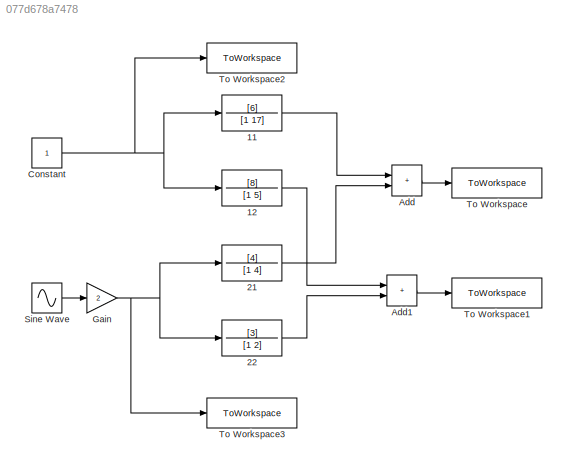
MODEL slx_077d678a7478
KIND model
CONFIG AbsTol = auto
CONFIG EnableMultiTasking = off
CONFIG FixedStep = auto
CONFIG MaxStep = auto
CONFIG MinStep = auto
CONFIG RelTol = 1e-3
CONFIG SampleTimeConstraint = Unconstrained
CONFIG SolverName = VariableStepAuto
CONFIG StartTime = 0.0
CONFIG StopTime = 20
BLOCK [TransferFcn] 11
  Denominator = [1 17]
  Numerator = [6]
BLOCK [TransferFcn] 12
  Denominator = [1 5]
  Numerator = [8]
BLOCK [TransferFcn] 21
  Denominator = [1 4]
  Numerator = [4]
BLOCK [TransferFcn] 22
  Denominator = [1 2]
  Numerator = [3]
BLOCK [Sum] Add
  IconShape = rectangular
  Ports = [2, 1]
BLOCK [Sum] Add1
  IconShape = rectangular
  Ports = [2, 1]
BLOCK [Constant] Constant
  SampleTime = -1
BLOCK [Gain] Gain
  Gain = 2
BLOCK [Sin] Sine Wave
  Ports = [0, 1]
  SampleTime = 0
BLOCK [ToWorkspace] To Workspace
  FixptAsFi = on
  MaxDataPoints = inf
  Ports = [1]
  SampleTime = -1
  SaveFormat = Timeseries
  VariableName = y1
BLOCK [ToWorkspace] To Workspace1
  FixptAsFi = on
  MaxDataPoints = inf
  Ports = [1]
  SampleTime = -1
  SaveFormat = Timeseries
  VariableName = y2
BLOCK [ToWorkspace] To Workspace2
  FixptAsFi = on
  MaxDataPoints = inf
  Ports = [1]
  SampleTime = -1
  SaveFormat = Timeseries
  VariableName = u1
BLOCK [ToWorkspace] To Workspace3
  FixptAsFi = on
  MaxDataPoints = inf
  Ports = [1]
  SampleTime = -1
  SaveFormat = Timeseries
  VariableName = u2
LINE 11:1 -> Add:1
LINE 12:1 -> Add1:1
LINE 21:1 -> Add:2
LINE 22:1 -> Add1:2
LINE Add1:1 -> To Workspace1:1
LINE Add:1 -> To Workspace:1
NET Constant:1 -> 11:1, 12:1, To Workspace2:1
NET Gain:1 -> 21:1, 22:1, To Workspace3:1
LINE Sine Wave:1 -> Gain:1
note: NET lines group one-source signal fan-out (src -> all destinations, sorted); 1:1 wires keep LINE
